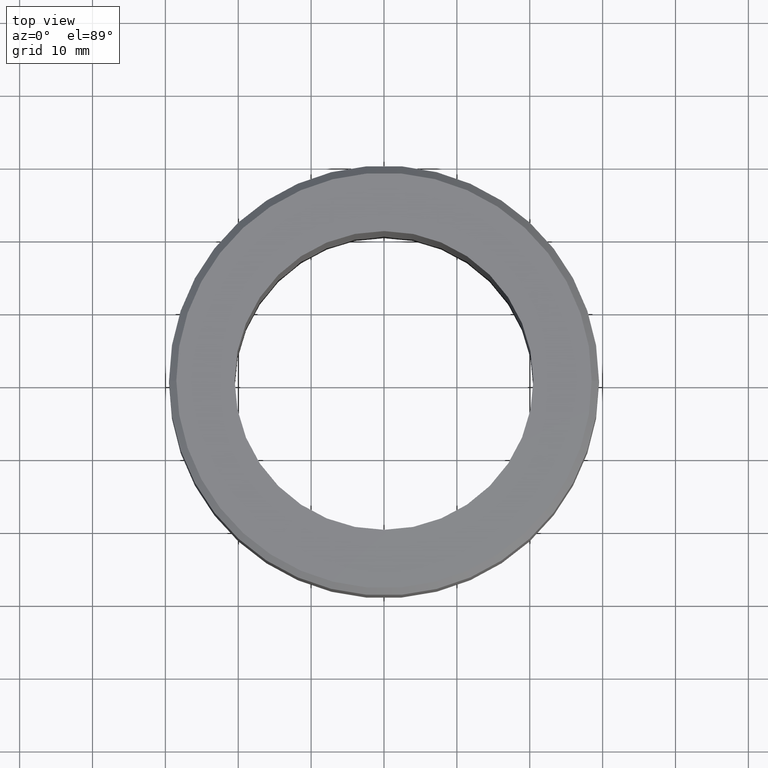
[diagram: clean part render]
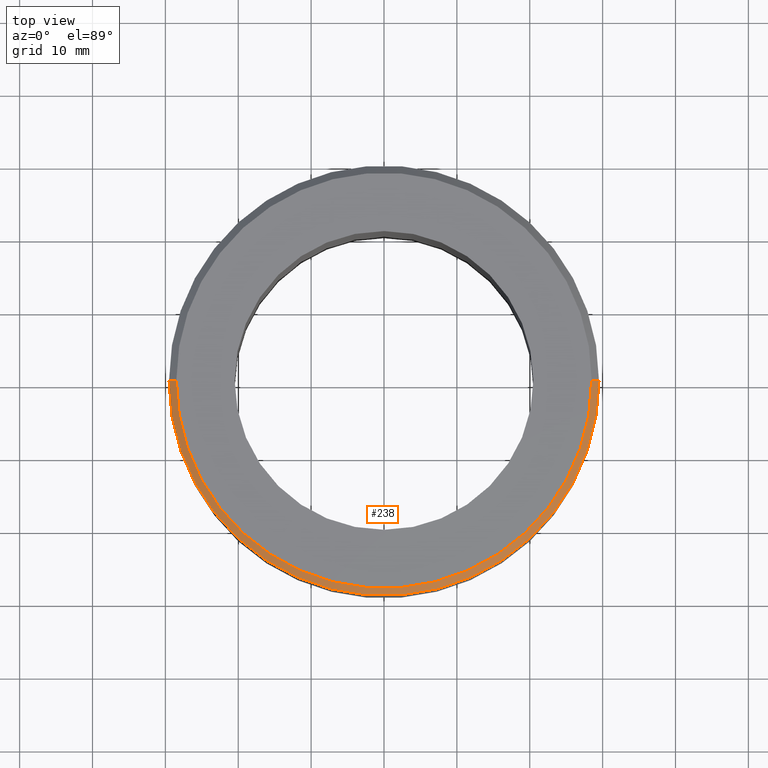
[diagram: same view with one face highlighted and labeled with its STEP entity id]
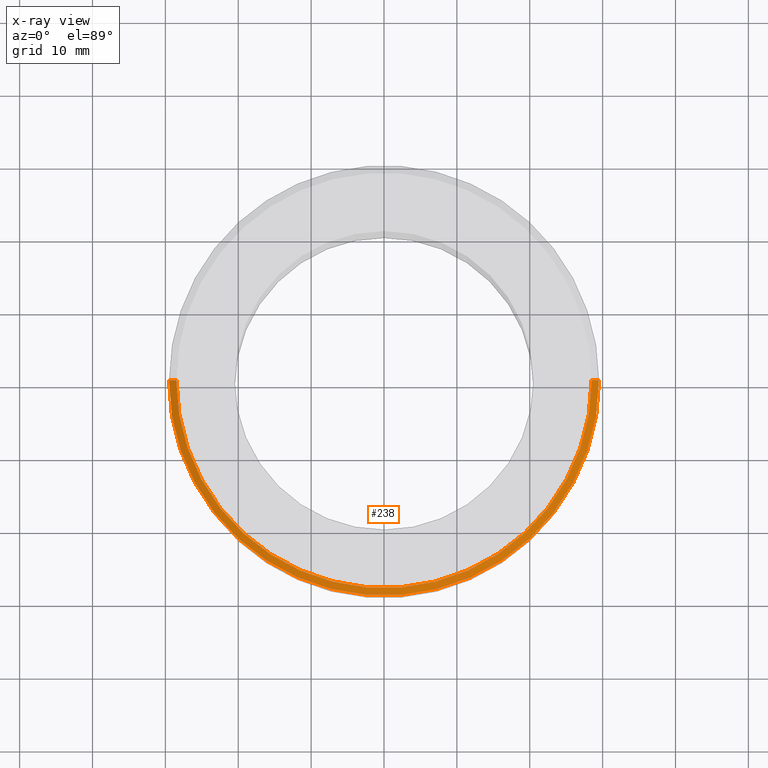
[diagram: x-ray of the same camera — body ghosted, the highlighted face saturated]
A machine part, top view. The second image highlights one B-rep face of the part: STEP entity #238.
The next image is the same camera in x-ray: the body ghosted, the highlighted face saturated — about 0% of this face is hidden behind the body in this view.
In plain terms, the highlighted conical surface has half-angle 45 deg.
Its self-contained STEP definition (entity closure, byte-faithful):
#11 = EDGE_CURVE ( 'NONE', #33, #415, #373, .T. ) ;
#25 = DIRECTION ( 'NONE',  ( 0.000000000000000000, 0.000000000000000000, -1.000000000000000000 ) ) ;
#33 = VERTEX_POINT ( 'NONE', #56 ) ;
#34 = AXIS2_PLACEMENT_3D ( 'NONE', #472, #25, #234 ) ;
#39 = CIRCLE ( 'NONE', #181, 28.49999999999998224 ) ;
#40 = CARTESIAN_POINT ( 'NONE',  ( -28.49999999999998224, 0.000000000000000000, 0.000000000000000000 ) ) ;
#42 = CARTESIAN_POINT ( 'NONE',  ( -28.49999999999998224, 0.000000000000000000, 0.000000000000000000 ) ) ;
#56 = CARTESIAN_POINT ( 'NONE',  ( 28.49999999999998224, 3.551475717527322452E-15, 0.000000000000000000 ) ) ;
#59 = CIRCLE ( 'NONE', #168, 29.50000000000000000 ) ;
#106 = DIRECTION ( 'NONE',  ( 0.000000000000000000, 0.000000000000000000, -1.000000000000000000 ) ) ;
#119 = ORIENTED_EDGE ( 'NONE', *, *, #456, .F. ) ;
#160 = CARTESIAN_POINT ( 'NONE',  ( 0.000000000000000000, 0.000000000000000000, 0.000000000000000000 ) ) ;
#168 = AXIS2_PLACEMENT_3D ( 'NONE', #355, #106, #518 ) ;
#177 = VECTOR ( 'NONE', #428, 1000.000000000000000 ) ;
#181 = AXIS2_PLACEMENT_3D ( 'NONE', #160, #324, #408 ) ;
#214 = ORIENTED_EDGE ( 'NONE', *, *, #391, .T. ) ;
#216 = EDGE_CURVE ( 'NONE', #415, #435, #59, .T. ) ;
#234 = DIRECTION ( 'NONE',  ( -1.000000000000000000, 0.000000000000000000, 0.000000000000000000 ) ) ;
#238 = ADVANCED_FACE ( 'NONE', ( #515 ), #484, .T. ) ;
#248 = ORIENTED_EDGE ( 'NONE', *, *, #11, .F. ) ;
#252 = CARTESIAN_POINT ( 'NONE',  ( 29.50000000000000000, 0.000000000000000000, -1.000000000000004441 ) ) ;
#285 = EDGE_LOOP ( 'NONE', ( #248, #119, #214, #486 ) ) ;
#324 = DIRECTION ( 'NONE',  ( -0.000000000000000000, -0.000000000000000000, 1.000000000000000000 ) ) ;
#339 = VECTOR ( 'NONE', #457, 1000.000000000000000 ) ;
#355 = CARTESIAN_POINT ( 'NONE',  ( 0.000000000000000000, 0.000000000000000000, -1.000000000000004441 ) ) ;
#373 = LINE ( 'NONE', #382, #177 ) ;
#375 = CARTESIAN_POINT ( 'NONE',  ( -29.50000000000000000, 3.612708057484691604E-15, -1.000000000000004441 ) ) ;
#382 = CARTESIAN_POINT ( 'NONE',  ( 28.49999999999998224, 3.490243377569954483E-15, 0.000000000000000000 ) ) ;
#391 = EDGE_CURVE ( 'NONE', #493, #435, #403, .T. ) ;
#403 = LINE ( 'NONE', #42, #339 ) ;
#408 = DIRECTION ( 'NONE',  ( 1.000000000000000000, 0.000000000000000000, 0.000000000000000000 ) ) ;
#415 = VERTEX_POINT ( 'NONE', #252 ) ;
#428 = DIRECTION ( 'NONE',  ( 0.7071067811865512365, 8.659560562354979697E-17, -0.7071067811865439090 ) ) ;
#435 = VERTEX_POINT ( 'NONE', #375 ) ;
#456 = EDGE_CURVE ( 'NONE', #493, #33, #39, .T. ) ;
#457 = DIRECTION ( 'NONE',  ( -0.7071067811865512365, 0.000000000000000000, -0.7071067811865439090 ) ) ;
#472 = CARTESIAN_POINT ( 'NONE',  ( 0.000000000000000000, 0.000000000000000000, 0.000000000000000000 ) ) ;
#484 = CONICAL_SURFACE ( 'NONE', #34, 28.49999999999998224, 0.7853981633974533860 ) ;
#486 = ORIENTED_EDGE ( 'NONE', *, *, #216, .F. ) ;
#493 = VERTEX_POINT ( 'NONE', #40 ) ;
#515 = FACE_OUTER_BOUND ( 'NONE', #285, .T. ) ;
#518 = DIRECTION ( 'NONE',  ( 1.000000000000000000, 0.000000000000000000, 0.000000000000000000 ) ) ;